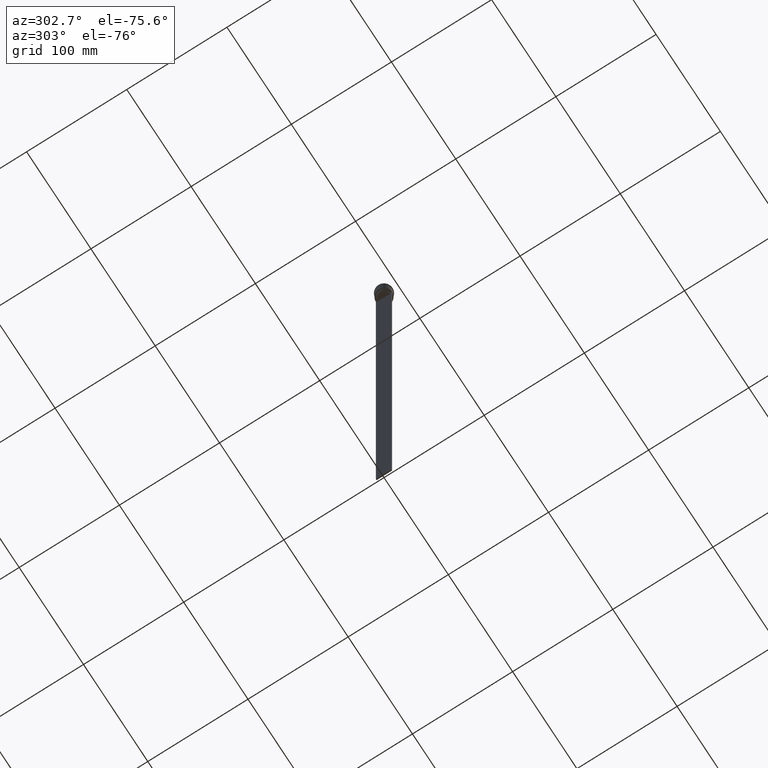
[diagram: clean part render]
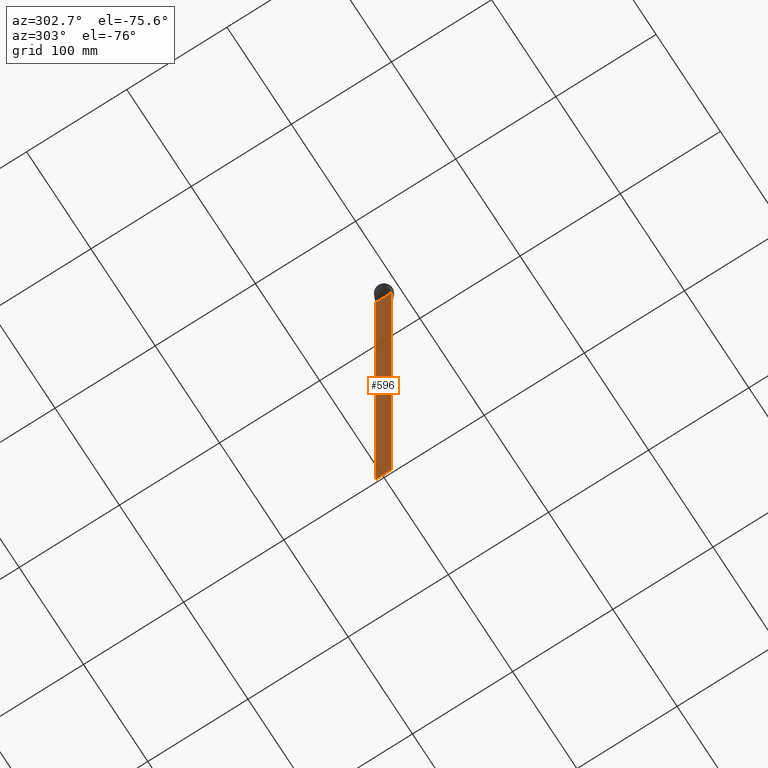
[diagram: same view with one face highlighted and labeled with its STEP entity id]
A machine part, auxiliary view. The second image highlights one B-rep face of the part: STEP entity #596.
In plain terms, the highlighted planar face has unit normal (-1, 0, 0).
Its self-contained STEP definition (entity closure, byte-faithful):
#29 = VERTEX_POINT ( 'NONE', #2272 ) ;
#40 = EDGE_CURVE ( 'NONE', #1377, #1228, #215, .T. ) ;
#58 = VECTOR ( 'NONE', #1864, 1000.000000000000000 ) ;
#140 = CARTESIAN_POINT ( 'NONE',  ( -0.4999999999999998890, 6.380438856379708312, -14.50000000000000000 ) ) ;
#145 = VERTEX_POINT ( 'NONE', #2327 ) ;
#156 = CARTESIAN_POINT ( 'NONE',  ( -0.4999999999999998890, 7.750000000000002665, -614.0000000000000000 ) ) ;
#182 = CARTESIAN_POINT ( 'NONE',  ( -0.4999999999999998890, -6.380438856379708312, -14.50000000000000000 ) ) ;
#215 = LINE ( 'NONE', #589, #1345 ) ;
#221 = CARTESIAN_POINT ( 'NONE',  ( -0.4999999999999998890, -6.881860213634098500, -14.00000000000000178 ) ) ;
#253 = EDGE_CURVE ( 'NONE', #1228, #2289, #1480, .T. ) ;
#322 = EDGE_LOOP ( 'NONE', ( #1814, #1128, #1454, #1452, #1926, #717, #560, #2054, #1584, #794 ) ) ;
#341 = VERTEX_POINT ( 'NONE', #622 ) ;
#345 = VECTOR ( 'NONE', #447, 1000.000000000000000 ) ;
#351 = VECTOR ( 'NONE', #1205, 1000.000000000000000 ) ;
#396 = EDGE_CURVE ( 'NONE', #145, #2200, #1362, .T. ) ;
#447 = DIRECTION ( 'NONE',  ( 0.000000000000000000, 0.000000000000000000, -1.000000000000000000 ) ) ;
#492 = CARTESIAN_POINT ( 'NONE',  ( -0.4999999999999998890, -7.749999999999999112, -614.0000000000000000 ) ) ;
#560 = ORIENTED_EDGE ( 'NONE', *, *, #1762, .F. ) ;
#567 = CARTESIAN_POINT ( 'NONE',  ( -0.4999999999999998890, -6.380438856379708312, -14.50000000000000000 ) ) ;
#589 = CARTESIAN_POINT ( 'NONE',  ( -0.4999999999999998890, 6.399999999999999467, -17.00000000000000000 ) ) ;
#596 = ADVANCED_FACE ( 'NONE', ( #1986 ), #1283, .T. ) ;
#599 = VERTEX_POINT ( 'NONE', #1263 ) ;
#605 = DIRECTION ( 'NONE',  ( 0.000000000000000000, -1.000000000000000000, 0.000000000000000000 ) ) ;
#622 = CARTESIAN_POINT ( 'NONE',  ( -0.4999999999999998890, 6.380438856379708312, -14.50000000000000000 ) ) ;
#634 = DIRECTION ( 'NONE',  ( 0.000000000000000000, -1.000000000000000000, 0.000000000000000000 ) ) ;
#714 = VECTOR ( 'NONE', #1636, 1000.000000000000000 ) ;
#717 = ORIENTED_EDGE ( 'NONE', *, *, #1972, .F. ) ;
#780 = DIRECTION ( 'NONE',  ( -0.000000000000000000, -0.000000000000000000, 1.000000000000000000 ) ) ;
#794 = ORIENTED_EDGE ( 'NONE', *, *, #2006, .F. ) ;
#859 = VECTOR ( 'NONE', #634, 1000.000000000000000 ) ;
#866 = CARTESIAN_POINT ( 'NONE',  ( -0.4999999999999998890, -7.749999999999999112, -14.00000000000000178 ) ) ;
#984 = CARTESIAN_POINT ( 'NONE',  ( -0.4999999999999998890, 7.750000000000002665, 1.532224567009066840 ) ) ;
#1045 = EDGE_CURVE ( 'NONE', #599, #341, #1058, .T. ) ;
#1056 = DIRECTION ( 'NONE',  ( 0.000000000000000000, 0.000000000000000000, 1.000000000000000000 ) ) ;
#1058 = B_SPLINE_CURVE_WITH_KNOTS ( 'NONE', 3,
 ( #1572, #2391, #1592, #140 ),
 .UNSPECIFIED., .F., .F.,
 ( 4, 4 ),
 ( 0.01172465562756038263, 0.01243276816391822651 ),
 .UNSPECIFIED. ) ;
#1104 = EDGE_CURVE ( 'NONE', #1133, #2200, #2260, .T. ) ;
#1128 = ORIENTED_EDGE ( 'NONE', *, *, #1625, .F. ) ;
#1133 = VERTEX_POINT ( 'NONE', #492 ) ;
#1161 = AXIS2_PLACEMENT_3D ( 'NONE', #1441, #2038, #1056 ) ;
#1205 = DIRECTION ( 'NONE',  ( 0.000000000000000000, 0.000000000000000000, -1.000000000000000000 ) ) ;
#1228 = VERTEX_POINT ( 'NONE', #1471 ) ;
#1263 = CARTESIAN_POINT ( 'NONE',  ( -0.4999999999999998890, 6.881860213634098500, -14.00000000000000178 ) ) ;
#1283 = PLANE ( 'NONE',  #1161 ) ;
#1298 = CARTESIAN_POINT ( 'NONE',  ( -0.4999999999999998890, -6.714736947305992132, -14.16668390685738999 ) ) ;
#1345 = VECTOR ( 'NONE', #605, 1000.000000000000000 ) ;
#1362 = LINE ( 'NONE', #984, #345 ) ;
#1377 = VERTEX_POINT ( 'NONE', #2362 ) ;
#1436 = VECTOR ( 'NONE', #1505, 1000.000000000000000 ) ;
#1441 = CARTESIAN_POINT ( 'NONE',  ( -0.4999999999999998890, -7.749999999999999112, 1.532224567009066840 ) ) ;
#1452 = ORIENTED_EDGE ( 'NONE', *, *, #1104, .F. ) ;
#1454 = ORIENTED_EDGE ( 'NONE', *, *, #396, .T. ) ;
#1471 = CARTESIAN_POINT ( 'NONE',  ( -0.4999999999999998890, -6.380438856379708312, -17.00000000000000000 ) ) ;
#1477 = CARTESIAN_POINT ( 'NONE',  ( -0.4999999999999998890, -6.881860213634098500, -14.00000000000000178 ) ) ;
#1480 = LINE ( 'NONE', #2036, #1720 ) ;
#1505 = DIRECTION ( 'NONE',  ( 0.000000000000000000, 0.000000000000000000, -1.000000000000000000 ) ) ;
#1541 = LINE ( 'NONE', #2105, #859 ) ;
#1545 = VERTEX_POINT ( 'NONE', #221 ) ;
#1572 = CARTESIAN_POINT ( 'NONE',  ( -0.4999999999999998890, 6.881860213634098500, -14.00000000000000178 ) ) ;
#1584 = ORIENTED_EDGE ( 'NONE', *, *, #40, .F. ) ;
#1592 = CARTESIAN_POINT ( 'NONE',  ( -0.4999999999999998890, 6.547597841304911626, -14.33335192459222718 ) ) ;
#1625 = EDGE_CURVE ( 'NONE', #145, #599, #1996, .T. ) ;
#1636 = DIRECTION ( 'NONE',  ( 0.000000000000000000, -1.000000000000000000, 0.000000000000000000 ) ) ;
#1720 = VECTOR ( 'NONE', #780, 1000.000000000000000 ) ;
#1758 = CARTESIAN_POINT ( 'NONE',  ( -0.4999999999999998890, 6.380438856379708312, 0.000000000000000000 ) ) ;
#1762 = EDGE_CURVE ( 'NONE', #2289, #1545, #1851, .T. ) ;
#1812 = CARTESIAN_POINT ( 'NONE',  ( -0.4999999999999998890, -7.749999999999999112, 1.532224567009066840 ) ) ;
#1814 = ORIENTED_EDGE ( 'NONE', *, *, #1045, .F. ) ;
#1843 = CARTESIAN_POINT ( 'NONE',  ( -0.4999999999999998890, -6.547597841511246131, -14.33335192438652328 ) ) ;
#1851 = B_SPLINE_CURVE_WITH_KNOTS ( 'NONE', 3,
 ( #567, #1843, #1298, #1477 ),
 .UNSPECIFIED., .F., .F.,
 ( 4, 4 ),
 ( 0.02996184199614749730, 0.03067452609193703841 ),
 .UNSPECIFIED. ) ;
#1864 = DIRECTION ( 'NONE',  ( 0.000000000000000000, 1.000000000000000000, 0.000000000000000000 ) ) ;
#1926 = ORIENTED_EDGE ( 'NONE', *, *, #2115, .F. ) ;
#1944 = LINE ( 'NONE', #1812, #351 ) ;
#1972 = EDGE_CURVE ( 'NONE', #1545, #29, #1541, .T. ) ;
#1986 = FACE_OUTER_BOUND ( 'NONE', #322, .T. ) ;
#1996 = LINE ( 'NONE', #866, #714 ) ;
#2006 = EDGE_CURVE ( 'NONE', #341, #1377, #2117, .T. ) ;
#2036 = CARTESIAN_POINT ( 'NONE',  ( -0.4999999999999998890, -6.380438856379708312, 0.000000000000000000 ) ) ;
#2038 = DIRECTION ( 'NONE',  ( -1.000000000000000000, 0.000000000000000000, 0.000000000000000000 ) ) ;
#2054 = ORIENTED_EDGE ( 'NONE', *, *, #253, .F. ) ;
#2069 = CARTESIAN_POINT ( 'NONE',  ( -0.4999999999999998890, -7.749999999999999112, -614.0000000000000000 ) ) ;
#2105 = CARTESIAN_POINT ( 'NONE',  ( -0.4999999999999998890, -7.749999999999999112, -14.00000000000000178 ) ) ;
#2115 = EDGE_CURVE ( 'NONE', #29, #1133, #1944, .T. ) ;
#2117 = LINE ( 'NONE', #1758, #1436 ) ;
#2200 = VERTEX_POINT ( 'NONE', #156 ) ;
#2260 = LINE ( 'NONE', #2069, #58 ) ;
#2272 = CARTESIAN_POINT ( 'NONE',  ( -0.4999999999999998890, -7.749999999999999112, -14.00000000000000178 ) ) ;
#2289 = VERTEX_POINT ( 'NONE', #182 ) ;
#2327 = CARTESIAN_POINT ( 'NONE',  ( -0.4999999999999998890, 7.750000000000002665, -14.00000000000000178 ) ) ;
#2362 = CARTESIAN_POINT ( 'NONE',  ( -0.4999999999999998890, 6.380438856379708312, -17.00000000000000000 ) ) ;
#2391 = CARTESIAN_POINT ( 'NONE',  ( -0.4999999999999998890, 6.714736947114692711, -14.16668390704818847 ) ) ;